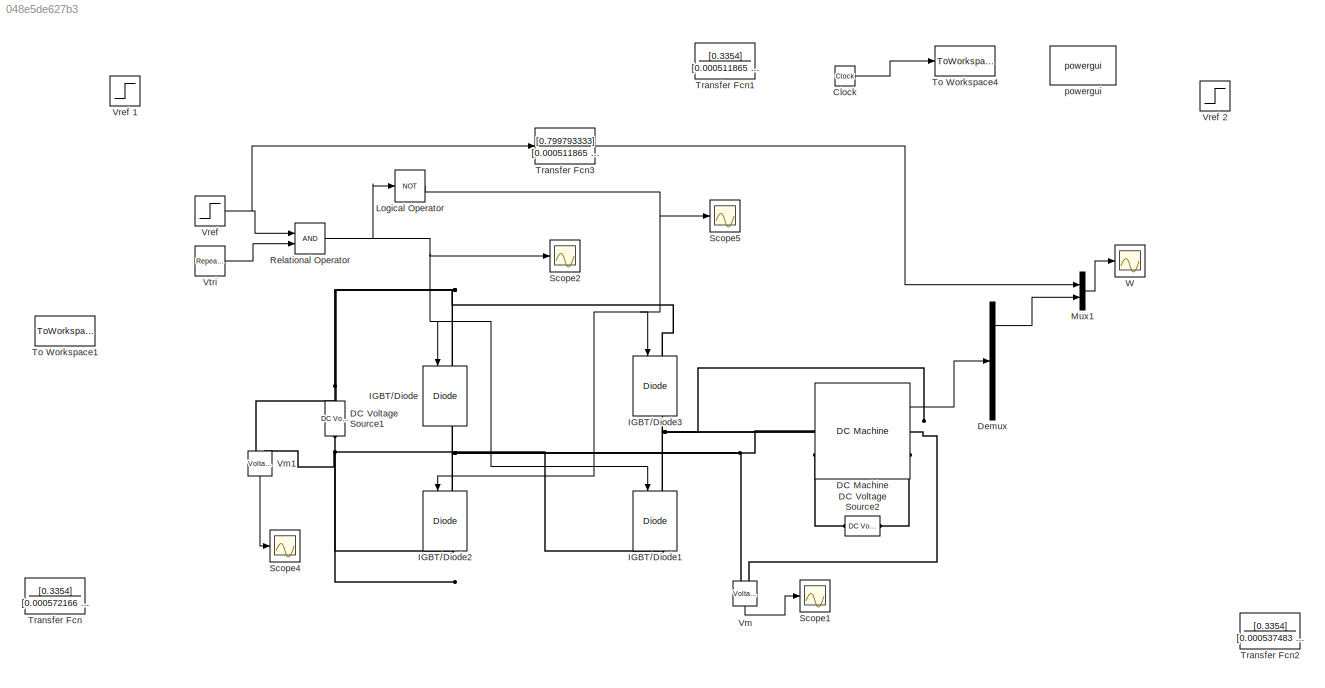
MODEL slx_048e5de627b3
KIND model
BLOCK [Clock] Clock
BLOCK [Reference] DC Machine  REF=powerlib/Machines/DC Machine
  Bm = 0.01
  FieldType = Wound
  Ifinit = 1
  J = 0.05
  Ke = 1.8
  Kt = 1.8
  Laf = 1.234
  MachineConstant = Torque constant (N.m/A)
  MechanicalLoad = Torque TL
  Ports = [1, 1, 0, 0, 0, 2, 2]
  PresetModel = 02: 5HP 240V 1750RPM Field:150V
  RLa = [0.78 0.016]
  RLf = [150 112.5]
  ShowDetailedParameters = on
  SourceBlock = powerlib/Machines/DC Machine
  SourceType = DC machine
  Tf = 0
  TsBlock = -1
  TsPowergui = 0
  w0 = 1
BLOCK [Reference] DC Voltage Source1  REF=powerlib/Electrical
Sources/DC Voltage Source
  Amplitude = 240
  Measurements = None
  Ports = [0, 0, 0, 0, 0, 1, 1]
  SourceBlock = powerlib/Electrical\nSources/DC Voltage Source
  SourceType = DC Voltage Source
BLOCK [Reference] DC Voltage Source2  REF=powerlib/Electrical
Sources/DC Voltage Source
  Amplitude = 150
  Measurements = None
  Ports = [0, 0, 0, 0, 0, 1, 1]
  SourceBlock = powerlib/Electrical\nSources/DC Voltage Source
  SourceType = DC Voltage Source
BLOCK [Demux] Demux
  DisplayOption = bar
  Ports = [1, 4]
BLOCK [Reference] IGBT//Diode  REF=powerlib/Power
Electronics/IGBT//Diode
  Cs = inf
  Measurements = on
  Ports = [1, 1, 0, 0, 0, 1, 1]
  Ron = 1e-3
  Rs = 1e5
  SourceBlock = powerlib/Power\nElectronics/IGBT//Diode
  SourceType = IGBT/Diode
BLOCK [Reference] IGBT//Diode1  REF=powerlib/Power
Electronics/IGBT//Diode
  Cs = inf
  Measurements = on
  Ports = [1, 1, 0, 0, 0, 1, 1]
  Ron = 1e-3
  Rs = 1e5
  SourceBlock = powerlib/Power\nElectronics/IGBT//Diode
  SourceType = IGBT/Diode
BLOCK [Reference] IGBT//Diode2  REF=powerlib/Power
Electronics/IGBT//Diode
  Cs = inf
  Measurements = on
  Ports = [1, 1, 0, 0, 0, 1, 1]
  Ron = 1e-3
  Rs = 1e5
  SourceBlock = powerlib/Power\nElectronics/IGBT//Diode
  SourceType = IGBT/Diode
BLOCK [Reference] IGBT//Diode3  REF=powerlib/Power
Electronics/IGBT//Diode
  Cs = inf
  Measurements = on
  Ports = [1, 1, 0, 0, 0, 1, 1]
  Ron = 1e-3
  Rs = 1e5
  SourceBlock = powerlib/Power\nElectronics/IGBT//Diode
  SourceType = IGBT/Diode
BLOCK [Logic] Logical Operator
  AllPortsSameDT = off
  Operator = NOT
  OutDataTypeStr = boolean
  Ports = [1, 1]
BLOCK [Mux] Mux1
  DisplayOption = bar
  Inputs = 2
  Ports = [2, 1]
BLOCK [RelationalOperator] Relational Operator
  InputSameDT = off
  OutDataTypeStr = boolean
  Ports = [2, 1]
BLOCK [Scope] Scope1
  DataFormat = StructureWithTime
  Floating = off
  LimitDataPoints = off
  NumInputPorts = 1
  Ports = [1]
  SampleTime = 0
  SaveName = ScopeData1
  SaveToWorkspace = on
  ShowLegends = off
BLOCK [Scope] Scope2
  Floating = off
  LimitDataPoints = off
  NumInputPorts = 1
  Ports = [1]
  SampleTime = 0
  SaveToWorkspace = on
  ShowLegends = off
  ZoomMode = xonly
BLOCK [Scope] Scope4
  DataFormat = StructureWithTime
  Floating = off
  NumInputPorts = 1
  Ports = [1]
  SampleTime = 0
  SaveName = ScopeData3
  ShowLegends = off
BLOCK [Scope] Scope5
  Floating = off
  LimitDataPoints = off
  NumInputPorts = 1
  Ports = [1]
  SampleTime = 0
  SaveName = ScopeData4
  SaveToWorkspace = on
  ShowLegends = off
  ZoomMode = xonly
BLOCK [ToWorkspace] To Workspace1
  MaxDataPoints = inf
  Ports = [1]
  SampleTime = -1
  SaveFormat = Timeseries
  VariableName = simout
BLOCK [ToWorkspace] To Workspace4
  MaxDataPoints = inf
  Ports = [1]
  SampleTime = -1
  SaveFormat = Timeseries
  VariableName = t
BLOCK [TransferFcn] Transfer Fcn
  Denominator = [0.000572166 0.026989696 1]
  Numerator = [0.3354]
BLOCK [TransferFcn] Transfer Fcn1
  Denominator = [0.000511865 0.025527855 1]
  Numerator = [0.3354]
BLOCK [TransferFcn] Transfer Fcn2
  Denominator = [0.000537483 0.026158877 1]
  Numerator = [0.3354]
BLOCK [TransferFcn] Transfer Fcn3
  Denominator = [0.000511865 0.025442165 1]
  Numerator = [0.799793333]
BLOCK [Reference] Vm  REF=powerlib/Measurements/Voltage Measurement
  OutputType = Complex
  PSBequivalent = 0
  PhasorSimulation = off
  Ports = [0, 1, 0, 0, 0, 2]
  SourceBlock = powerlib/Measurements/Voltage Measurement
  SourceType = Voltage Measurement
BLOCK [Reference] Vm1  REF=powerlib/Measurements/Voltage Measurement
  OutputType = Complex
  PSBequivalent = 0
  PhasorSimulation = off
  Ports = [0, 1, 0, 0, 0, 2]
  SourceBlock = powerlib/Measurements/Voltage Measurement
  SourceType = Voltage Measurement
BLOCK [Step] Vref 
  After = -150
  SampleTime = 0
  Time = 0
BLOCK [Step] Vref 1
  After = 2
  SampleTime = 0
  Time = 10
BLOCK [Step] Vref 2
  After = 200
  SampleTime = 0
  Time = 0
BLOCK [Reference] Vtri  REF=simulink/Sources/Repeating
Sequence
  Ports = [0, 1]
  SourceBlock = simulink/Sources/Repeating\nSequence
  SourceType = Repeating table
  rep_seq_t = [0 (1/2) 1]*Tmli
  rep_seq_y = [-1  1 -1] *240
BLOCK [Scope] W
  Floating = off
  LimitDataPoints = off
  NumInputPorts = 1
  Ports = [1]
  SampleTime = 0
  SaveName = Vitesse
  SaveToWorkspace = on
  ShowLegends = off
  YMax = 6.7
  YMin = -6.7
  ZoomMode = xonly
BLOCK [Reference] powergui  REF=powerlib/powergui
  DisableRonSwitches = off
  DisableSnubberDevices = off
  DisableVfSwitches = off
  DisplayEquations = off
  DisplayStyle = 1
  EnableUseOfTLC = off
  ErrMax = 1e-4
  Frange = [0:2:500]
  FreqAxis = off
  FunctionMessages = off
  HookPort = off
  Interpol = off
  Iterations = 50
  MaxFrequency = 1000
  Pbase = 100e6
  Ports = []
  Priority = 1
  ResistiveCurrentMeasurement = off
  RestoreLinks = warning
  RmsSteady = 1
  SPID = off
  SampleTime = 50e-6
  ShowGrid = off
  SolverType = Tustin
  SourceBlock = powerlib/powergui
  SourceType = PSB option menu block
  StartTime = 0.0
  SwTol = 0
  Ts = 0
  UnitsV = kV
  UnitsW = MW
  UserDataPersistent = on
  Xlog = on
  Ylog = off
  ZoomFFT = off
  cycles = 1
  display = off
  echomessages = off
  frequency = 60
  frequencyindice = 0
  frequencyindicesteady = 1
  fundamental = 60
  methode = off
  save = off
  variable = ZData
  x0status = blocks
LINE Clock:1 -> To Workspace4:1
LINE DC Machine:1 -> Demux:1
LINE Demux:1 -> Mux1:2
NET Logical Operator:1 -> IGBT//Diode2:1, IGBT//Diode3:1, Scope5:1
LINE Mux1:1 -> W:1
NET Relational Operator:1 -> IGBT//Diode1:1, IGBT//Diode:1, Logical Operator:1, Scope2:1
LINE Transfer Fcn3:1 -> Mux1:1
LINE Vm1:1 -> Scope4:1
LINE Vm:1 -> Scope1:1
NET Vref :1 -> Relational Operator:1, Transfer Fcn3:1
LINE Vtri:1 -> Relational Operator:2
PNET net1: DC Machine:LConn1 -- IGBT//Diode2:LConn1 -- IGBT//Diode:RConn1 -- Vm:LConn1
PLINE DC Machine:LConn2 -- DC Voltage Source2:RConn1
PNET net2: DC Machine:RConn1 -- IGBT//Diode1:LConn1 -- IGBT//Diode3:RConn1 -- Vm:LConn2
PLINE DC Machine:RConn2 -- DC Voltage Source2:LConn1
PNET net3: DC Voltage Source1:LConn1 -- IGBT//Diode1:RConn1 -- IGBT//Diode2:RConn1 -- Vm1:LConn2
PNET net4: DC Voltage Source1:RConn1 -- IGBT//Diode3:LConn1 -- IGBT//Diode:LConn1 -- Vm1:LConn1
note: NET lines group one-source signal fan-out (src -> all destinations, sorted); 1:1 wires keep LINE; PNET lines group multi-terminal physical nets as a canonical sorted terminal list (undirected conserving connections); 2-terminal nets keep the pairwise PLINE form
